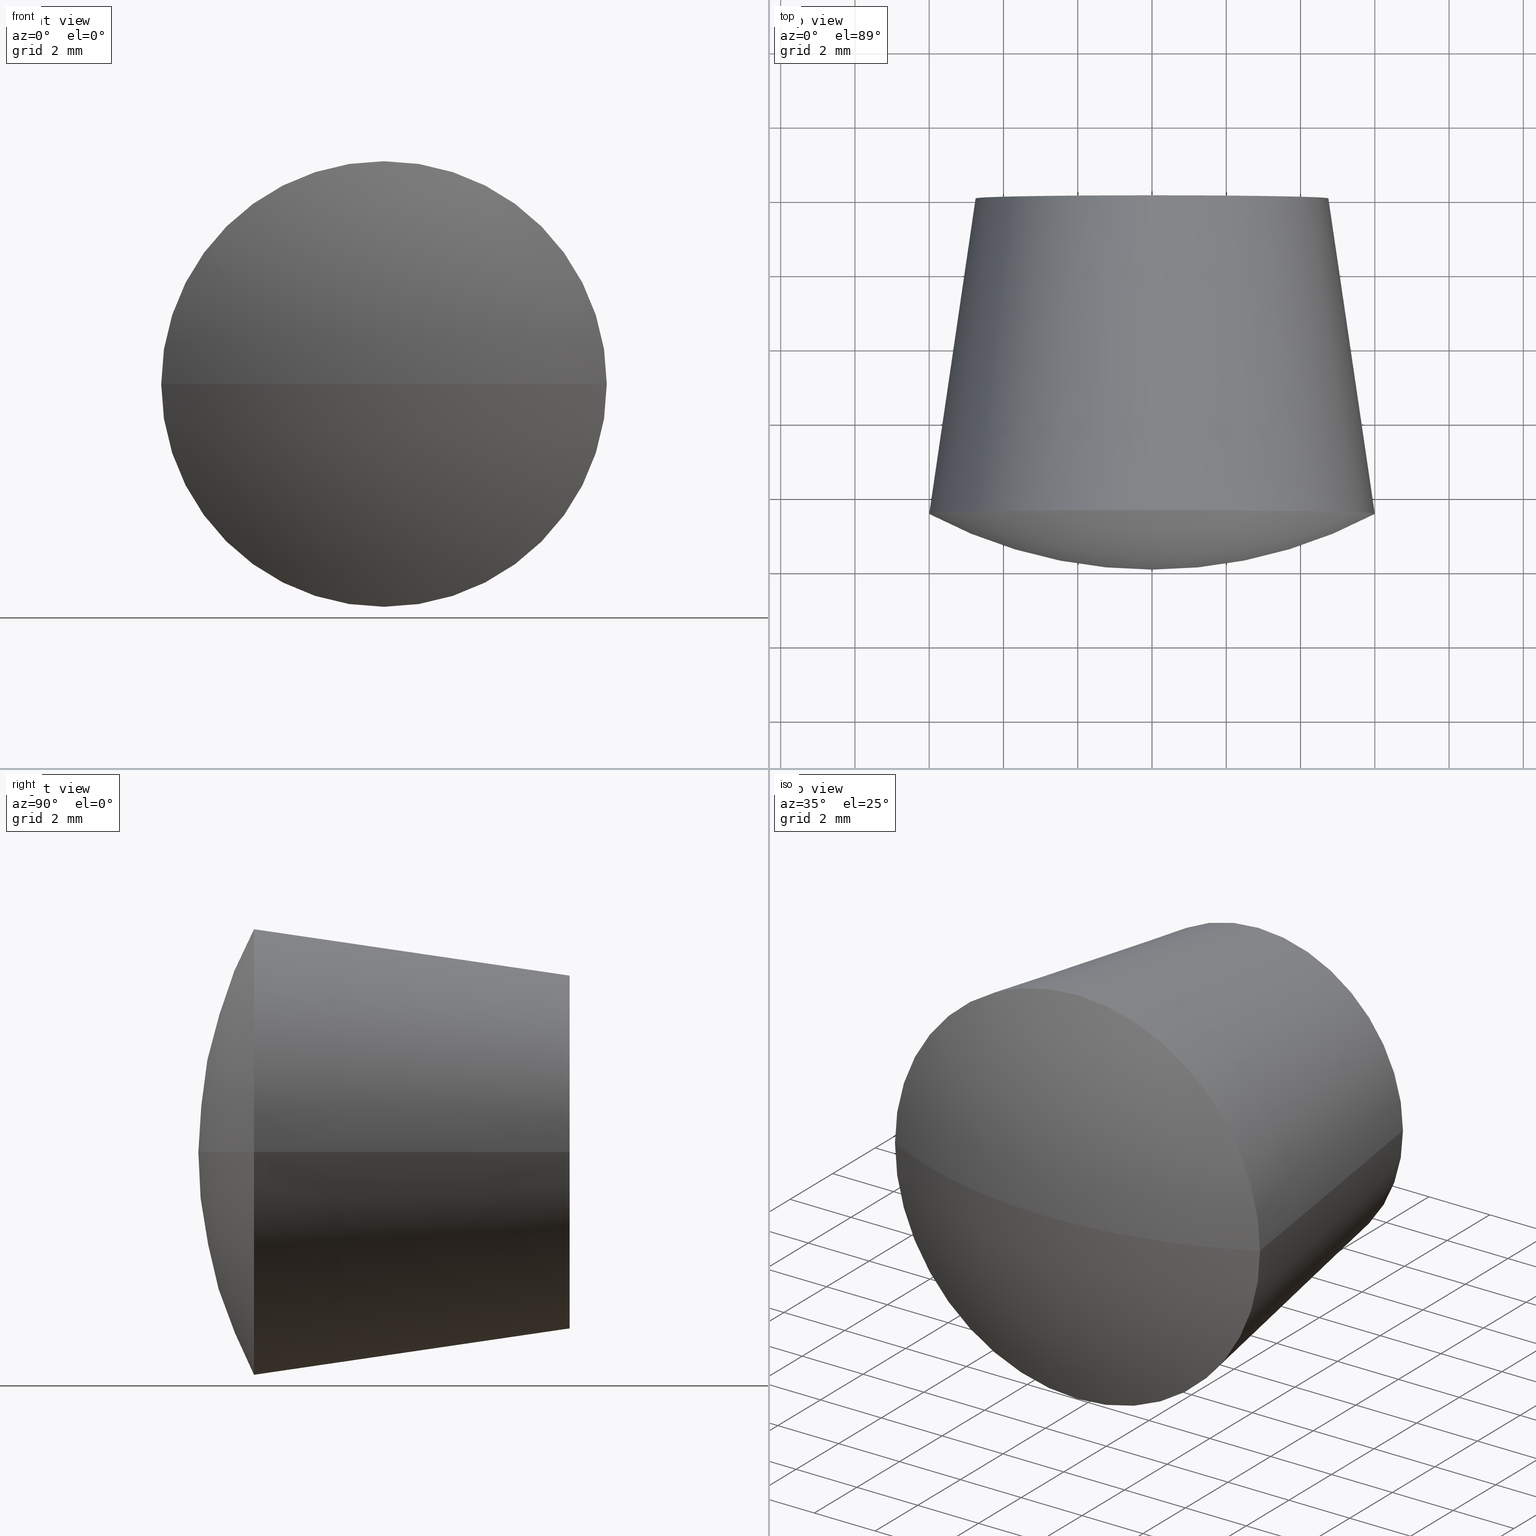
[diagram: canonical four-view strip — front | top / right | iso, engineering-drawing reading convention]
A machine part, canonical four-view strip (front | top / right | iso — engineering-drawing reading convention). The complete STEP part file that produces these views, byte-faithful:
ISO-10303-21;
HEADER;
FILE_DESCRIPTION (( 'STEP AP214' ),
    '1' );
FILE_NAME ('NP-05.STEP',
    '2018-01-31T01:18:40',
    ( 'D2' ),
    ( '' ),
    'SwSTEP 2.0',
    'SolidWorks 2016',
    '' );
FILE_SCHEMA (( 'AUTOMOTIVE_DESIGN' ));
ENDSEC;

DATA;
#1 = CIRCLE ( 'NONE', #196, 2.500000000000000400 ) ;
#2 = PRODUCT_DEFINITION_FORMATION_WITH_SPECIFIED_SOURCE ( 'ANY', '', #95, .NOT_KNOWN. ) ;
#3 = ADVANCED_FACE ( 'NONE', ( #27 ), #195, .T. ) ;
#4 = CARTESIAN_POINT ( 'NONE',  ( 0.0000000000000000000, -0.5000000000000064400, 0.0000000000000000000 ) ) ;
#5 = UNCERTAINTY_MEASURE_WITH_UNIT (LENGTH_MEASURE( 1.000000000000000100E-005 ), #127, 'distance_accuracy_value', 'NONE');
#6 = DIRECTION ( 'NONE',  ( 0.0000000000000000000, 0.0000000000000000000, 1.000000000000000000 ) ) ;
#7 = ORIENTED_EDGE ( 'NONE', *, *, #313, .F. ) ;
#8 = DIRECTION ( 'NONE',  ( 0.0000000000000000000, 0.0000000000000000000, -1.000000000000000000 ) ) ;
#9 = FACE_BOUND ( 'NONE', #122, .T. ) ;
#10 = DIRECTION ( 'NONE',  ( 3.491481338843133400E-015, -1.000000000000000000, -0.0000000000000000000 ) ) ;
#11 = AXIS2_PLACEMENT_3D ( 'NONE', #207, #10, #64 ) ;
#12 = CARTESIAN_POINT ( 'NONE',  ( 2.895229960628836200E-029, -8.292268179752438600E-015, 0.0000000000000000000 ) ) ;
#13 = DIRECTION ( 'NONE',  ( -1.000000000000000000, -3.469446951953613400E-015, 0.0000000000000000000 ) ) ;
#14 = VERTEX_POINT ( 'NONE', #219 ) ;
#15 = PRODUCT_DEFINITION_SHAPE ( 'NONE', 'NONE',  #215 ) ;
#16 = CARTESIAN_POINT ( 'NONE',  ( 3.367778697655221500E-016, -0.5000000000000064400, -2.500000000000000400 ) ) ;
#17 = EDGE_CURVE ( 'NONE', #14, #69, #279, .T. ) ;
#18 = CARTESIAN_POINT ( 'NONE',  ( 0.0000000000000000000, -0.5000000000000064400, 0.0000000000000000000 ) ) ;
#19 = CIRCLE ( 'NONE', #307, 2.500000000000000400 ) ;
#20 = DIRECTION ( 'NONE',  ( 1.000000000000000000, 3.469446951953631100E-015, 0.0000000000000000000 ) ) ;
#21 = DIRECTION ( 'NONE',  ( -0.0000000000000000000, -1.000000000000000000, -0.0000000000000000000 ) ) ;
#22 = DIRECTION ( 'NONE',  ( -3.491481338843133400E-015, 1.000000000000000000, 0.0000000000000000000 ) ) ;
#23 = VERTEX_POINT ( 'NONE', #74 ) ;
#24 = ORIENTED_EDGE ( 'NONE', *, *, #276, .T. ) ;
#25 = CONICAL_SURFACE ( 'NONE', #102, 2.100000000000000100, 0.7853981633974416200 ) ;
#26 = EDGE_CURVE ( 'NONE', #55, #56, #312, .T. ) ;
#27 = FACE_OUTER_BOUND ( 'NONE', #75, .T. ) ;
#28 = AXIS2_PLACEMENT_3D ( 'NONE', #180, #280, #37 ) ;
#29 = ORIENTED_EDGE ( 'NONE', *, *, #146, .F. ) ;
#30 = VECTOR ( 'NONE', #116, 1000.000000000000000 ) ;
#31 = ADVANCED_BREP_SHAPE_REPRESENTATION ( 'NP-05', ( #296, #225 ), #138 ) ;
#32 = EDGE_CURVE ( 'NONE', #56, #14, #40, .T. ) ;
#33 = ORIENTED_EDGE ( 'NONE', *, *, #94, .T. ) ;
#34 = DIRECTION ( 'NONE',  ( 0.0000000000000000000, 0.0000000000000000000, 1.000000000000000000 ) ) ;
#35 = LINE ( 'NONE', #308, #248 ) ;
#36 = CARTESIAN_POINT ( 'NONE',  ( 2.967759138016635000E-014, -8.499999999999952000, 0.0000000000000000000 ) ) ;
#37 = DIRECTION ( 'NONE',  ( 1.000000000000000000, 3.469446951953631100E-015, 0.0000000000000000000 ) ) ;
#38 = CARTESIAN_POINT ( 'NONE',  ( 0.0000000000000000000, -0.9000000000000119000, 0.0000000000000000000 ) ) ;
#39 = DIRECTION ( 'NONE',  ( 0.0000000000000000000, 0.0000000000000000000, -1.000000000000000000 ) ) ;
#40 = CIRCLE ( 'NONE', #89, 5.999999999999970700 ) ;
#41 = CARTESIAN_POINT ( 'NONE',  ( 2.967759138016635000E-014, -8.499999999999952000, 0.0000000000000000000 ) ) ;
#42 =( GEOMETRIC_REPRESENTATION_CONTEXT ( 3 ) GLOBAL_UNCERTAINTY_ASSIGNED_CONTEXT ( ( #5 ) ) GLOBAL_UNIT_ASSIGNED_CONTEXT ( ( #127, #293, #149 ) ) REPRESENTATION_CONTEXT ( 'NONE', 'WORKASPACE' ) );
#43 = CARTESIAN_POINT ( 'NONE',  ( 2.500000000000000400, -0.5000000000000064400, 3.061616997868382600E-016 ) ) ;
#44 = ORIENTED_EDGE ( 'NONE', *, *, #209, .T. ) ;
#45 = DIRECTION ( 'NONE',  ( 0.0000000000000000000, 0.7071067811865522400, 0.7071067811865428000 ) ) ;
#46 = EDGE_CURVE ( 'NONE', #210, #274, #176, .T. ) ;
#47 = ORIENTED_EDGE ( 'NONE', *, *, #246, .T. ) ;
#48 =( LENGTH_UNIT ( ) NAMED_UNIT ( * ) SI_UNIT ( .MILLI., .METRE. ) );
#49 = DIRECTION ( 'NONE',  ( -1.000000000000000000, -3.503461137757080400E-015, 0.0000000000000000000 ) ) ;
#50 = CIRCLE ( 'NONE', #66, 4.749999999999999100 ) ;
#51 = DIRECTION ( 'NONE',  ( 3.491481338843133400E-015, -1.000000000000000000, -0.0000000000000000000 ) ) ;
#52 = AXIS2_PLACEMENT_3D ( 'NONE', #38, #237, #6 ) ;
#53 = FILL_AREA_STYLE_COLOUR ( '', #316 ) ;
#54 = AXIS2_PLACEMENT_3D ( 'NONE', #41, #126, #20 ) ;
#55 = VERTEX_POINT ( 'NONE', #173 ) ;
#56 = VERTEX_POINT ( 'NONE', #143 ) ;
#57 = FACE_OUTER_BOUND ( 'NONE', #159, .T. ) ;
#58 = ORIENTED_EDGE ( 'NONE', *, *, #202, .F. ) ;
#59 = CARTESIAN_POINT ( 'NONE',  ( 2.500000000000049300, -14.07106781186546000, 3.061616997868383600E-016 ) ) ;
#60 = ADVANCED_FACE ( 'NONE', ( #164 ), #160, .T. ) ;
#61 = DIRECTION ( 'NONE',  ( 1.000000000000000000, 0.0000000000000000000, 0.0000000000000000000 ) ) ;
#62 = ORIENTED_EDGE ( 'NONE', *, *, #32, .F. ) ;
#63 = CARTESIAN_POINT ( 'NONE',  ( 4.373567473579352000E-014, -10.00000000000000000, 0.0000000000000000000 ) ) ;
#64 = DIRECTION ( 'NONE',  ( 1.000000000000000000, 3.491481338843132600E-015, 0.0000000000000000000 ) ) ;
#65 = CYLINDRICAL_SURFACE ( 'NONE', #238, 2.500000000000000400 ) ;
#66 = AXIS2_PLACEMENT_3D ( 'NONE', #121, #259, #181 ) ;
#67 = DIRECTION ( 'NONE',  ( -1.000000000000000000, -3.491481338843133400E-015, 0.0000000000000000000 ) ) ;
#68 = DIRECTION ( 'NONE',  ( 0.1454939904948323600, -0.9893591353648530900, 0.0000000000000000000 ) ) ;
#69 = VERTEX_POINT ( 'NONE', #63 ) ;
#70 = CARTESIAN_POINT ( 'NONE',  ( 4.912887068272456400E-014, -14.07106781186546800, 0.0000000000000000000 ) ) ;
#71 = FACE_OUTER_BOUND ( 'NONE', #300, .T. ) ;
#72 =( NAMED_UNIT ( * ) SI_UNIT ( $, .STERADIAN. ) SOLID_ANGLE_UNIT ( ) );
#73 = AXIS2_PLACEMENT_3D ( 'NONE', #183, #286, #13 ) ;
#74 = CARTESIAN_POINT ( 'NONE',  ( 2.500000000000024900, -6.999999999999991100, 3.061616997868396900E-016 ) ) ;
#75 = EDGE_LOOP ( 'NONE', ( #185, #24, #292 ) ) ;
#76 = VECTOR ( 'NONE', #45, 1000.000000000000000 ) ;
#77 = CIRCLE ( 'NONE', #118, 3.000000000000000000 ) ;
#78 = DIRECTION ( 'NONE',  ( 0.0000000000000000000, 0.0000000000000000000, 1.000000000000000000 ) ) ;
#79 = ORIENTED_EDGE ( 'NONE', *, *, #275, .F. ) ;
#80 = APPLICATION_CONTEXT ( 'automotive_design' ) ;
#81 = ORIENTED_EDGE ( 'NONE', *, *, #209, .F. ) ;
#82 = VECTOR ( 'NONE', #68, 1000.000000000000100 ) ;
#83 = CYLINDRICAL_SURFACE ( 'NONE', #125, 2.500000000000000400 ) ;
#84 =( NAMED_UNIT ( * ) SI_UNIT ( $, .STERADIAN. ) SOLID_ANGLE_UNIT ( ) );
#85 = ORIENTED_EDGE ( 'NONE', *, *, #260, .F. ) ;
#86 = ADVANCED_FACE ( 'NONE', ( #107 ), #25, .F. ) ;
#87 = DIRECTION ( 'NONE',  ( 0.0000000000000000000, 0.0000000000000000000, 1.000000000000000000 ) ) ;
#88 = ORIENTED_EDGE ( 'NONE', *, *, #246, .F. ) ;
#89 = AXIS2_PLACEMENT_3D ( 'NONE', #36, #251, #115 ) ;
#90 = CIRCLE ( 'NONE', #170, 2.500000000000000400 ) ;
#91 = CARTESIAN_POINT ( 'NONE',  ( 4.749999999999999100, 1.658453635950487700E-014, 0.0000000000000000000 ) ) ;
#92 = ORIENTED_EDGE ( 'NONE', *, *, #294, .F. ) ;
#93 = CIRCLE ( 'NONE', #298, 12.75000000000000200 ) ;
#94 = EDGE_CURVE ( 'NONE', #120, #210, #168, .T. ) ;
#95 = PRODUCT ( 'NP-05', 'NP-05', '', ( #220 ) ) ;
#96 = DIRECTION ( 'NONE',  ( -1.000000000000000000, -3.469446951953613400E-015, 0.0000000000000000000 ) ) ;
#97 = ORIENTED_EDGE ( 'NONE', *, *, #275, .T. ) ;
#98 = VERTEX_POINT ( 'NONE', #285 ) ;
#99 = FACE_OUTER_BOUND ( 'NONE', #236, .T. ) ;
#100 = DIRECTION ( 'NONE',  ( -1.224646799147353200E-016, -4.275831445896958600E-031, -1.000000000000000000 ) ) ;
#101 = SURFACE_SIDE_STYLE ('',( #201 ) ) ;
#102 = AXIS2_PLACEMENT_3D ( 'NONE', #233, #234, #254 ) ;
#103 = FACE_OUTER_BOUND ( 'NONE', #310, .T. ) ;
#104 = EDGE_CURVE ( 'NONE', #56, #69, #93, .T. ) ;
#105 = DIRECTION ( 'NONE',  ( 1.000000000000000000, 0.0000000000000000000, 0.0000000000000000000 ) ) ;
#106 = ORIENTED_EDGE ( 'NONE', *, *, #228, .F. ) ;
#107 = FACE_OUTER_BOUND ( 'NONE', #111, .T. ) ;
#108 = AXIS2_PLACEMENT_3D ( 'NONE', #309, #289, #49 ) ;
#109 = ORIENTED_EDGE ( 'NONE', *, *, #267, .T. ) ;
#110 = STYLED_ITEM ( 'NONE', ( #145 ), #296 ) ;
#111 = EDGE_LOOP ( 'NONE', ( #190, #211, #33, #58, #258 ) ) ;
#112 = DIRECTION ( 'NONE',  ( 0.0000000000000000000, 0.0000000000000000000, 1.000000000000000000 ) ) ;
#113 = ADVANCED_FACE ( 'NONE', ( #224 ), #83, .F. ) ;
#114 = DIRECTION ( 'NONE',  ( -0.0000000000000000000, 0.0000000000000000000, -1.000000000000000000 ) ) ;
#115 = DIRECTION ( 'NONE',  ( 1.000000000000000000, 3.469446951953631100E-015, 0.0000000000000000000 ) ) ;
#116 = DIRECTION ( 'NONE',  ( 8.659560562354874900E-017, 0.7071067811865522400, -0.7071067811865428000 ) ) ;
#117 = ORIENTED_EDGE ( 'NONE', *, *, #202, .T. ) ;
#118 = AXIS2_PLACEMENT_3D ( 'NONE', #167, #182, #39 ) ;
#119 = CARTESIAN_POINT ( 'NONE',  ( 6.000000000000000000, -8.499999999999930700, 0.0000000000000000000 ) ) ;
#120 = VERTEX_POINT ( 'NONE', #16 ) ;
#121 = CARTESIAN_POINT ( 'NONE',  ( 0.0000000000000000000, 0.0000000000000000000, 0.0000000000000000000 ) ) ;
#122 = EDGE_LOOP ( 'NONE', ( #117, #269 ) ) ;
#123 = CARTESIAN_POINT ( 'NONE',  ( 0.0000000000000000000, -0.9000000000000119000, 2.100000000000000100 ) ) ;
#124 = CARTESIAN_POINT ( 'NONE',  ( -5.999999999999941400, -8.499999999999973400, 7.347880794884083300E-016 ) ) ;
#125 = AXIS2_PLACEMENT_3D ( 'NONE', #169, #239, #140 ) ;
#126 = DIRECTION ( 'NONE',  ( 3.491481338843133400E-015, -1.000000000000000000, -0.0000000000000000000 ) ) ;
#127 =( LENGTH_UNIT ( ) NAMED_UNIT ( * ) SI_UNIT ( .MILLI., .METRE. ) );
#128 = VERTEX_POINT ( 'NONE', #43 ) ;
#129 = VECTOR ( 'NONE', #188, 1000.000000000000000 ) ;
#130 = UNCERTAINTY_MEASURE_WITH_UNIT (LENGTH_MEASURE( 1.000000000000000100E-005 ), #48, 'distance_accuracy_value', 'NONE');
#131 = PRESENTATION_STYLE_ASSIGNMENT (( #153 ) ) ;
#132 = AXIS2_PLACEMENT_3D ( 'NONE', #264, #100, #291 ) ;
#133 = EDGE_CURVE ( 'NONE', #213, #55, #50, .T. ) ;
#134 = ORIENTED_EDGE ( 'NONE', *, *, #276, .F. ) ;
#135 = VECTOR ( 'NONE', #278, 1000.000000000000000 ) ;
#136 = ADVANCED_FACE ( 'NONE', ( #103 ), #65, .F. ) ;
#137 = ORIENTED_EDGE ( 'NONE', *, *, #26, .T. ) ;
#138 =( GEOMETRIC_REPRESENTATION_CONTEXT ( 3 ) GLOBAL_UNCERTAINTY_ASSIGNED_CONTEXT ( ( #177 ) ) GLOBAL_UNIT_ASSIGNED_CONTEXT ( ( #172, #240, #72 ) ) REPRESENTATION_CONTEXT ( 'NONE', 'WORKASPACE' ) );
#139 = SPHERICAL_SURFACE ( 'NONE', #244, 12.75000000000000200 ) ;
#140 = DIRECTION ( 'NONE',  ( -1.000000000000000000, -3.469446951953613400E-015, 0.0000000000000000000 ) ) ;
#141 = PLANE ( 'NONE',  #154 ) ;
#142 = EDGE_LOOP ( 'NONE', ( #218, #29 ) ) ;
#143 = CARTESIAN_POINT ( 'NONE',  ( -5.999999999999941400, -8.499999999999973400, 7.347880794884083300E-016 ) ) ;
#144 = MECHANICAL_DESIGN_GEOMETRIC_PRESENTATION_REPRESENTATION (  '', ( #110 ), #42 ) ;
#145 = PRESENTATION_STYLE_ASSIGNMENT (( #266 ) ) ;
#146 = EDGE_CURVE ( 'NONE', #55, #213, #232, .T. ) ;
#147 = CONICAL_SURFACE ( 'NONE', #52, 2.100000000000000100, 0.7853981633974416200 ) ;
#148 = DIRECTION ( 'NONE',  ( -1.000000000000000000, -3.503461137757080400E-015, 0.0000000000000000000 ) ) ;
#149 =( NAMED_UNIT ( * ) SI_UNIT ( $, .STERADIAN. ) SOLID_ANGLE_UNIT ( ) );
#150 = VERTEX_POINT ( 'NONE', #214 ) ;
#151 = ORIENTED_EDGE ( 'NONE', *, *, #267, .F. ) ;
#152 = SHAPE_DEFINITION_REPRESENTATION ( #15, #31 ) ;
#153 = SURFACE_STYLE_USAGE ( .BOTH. , #271 ) ;
#154 = AXIS2_PLACEMENT_3D ( 'NONE', #12, #208, #67 ) ;
#155 = CIRCLE ( 'NONE', #229, 2.500000000000000400 ) ;
#156 = ORIENTED_EDGE ( 'NONE', *, *, #17, .T. ) ;
#157 = LINE ( 'NONE', #119, #82 ) ;
#158 = AXIS2_PLACEMENT_3D ( 'NONE', #257, #187, #306 ) ;
#159 = EDGE_LOOP ( 'NONE', ( #252, #156, #253 ) ) ;
#160 = CONICAL_SURFACE ( 'NONE', #28, 5.999999999999970700, 0.1460122577112729400 ) ;
#161 = PRESENTATION_LAYER_ASSIGNMENT (  '', '', ( #110 ) ) ;
#162 = DIRECTION ( 'NONE',  ( -0.0000000000000000000, -1.000000000000000000, -0.0000000000000000000 ) ) ;
#163 = ORIENTED_EDGE ( 'NONE', *, *, #313, .T. ) ;
#164 = FACE_OUTER_BOUND ( 'NONE', #287, .T. ) ;
#165 = CARTESIAN_POINT ( 'NONE',  ( 0.0000000000000000000, 0.0000000000000000000, 0.0000000000000000000 ) ) ;
#166 = CARTESIAN_POINT ( 'NONE',  ( -2.500000000000000000, -0.5000000000000064400, 0.0000000000000000000 ) ) ;
#167 = CARTESIAN_POINT ( 'NONE',  ( 0.0000000000000000000, 0.0000000000000000000, 0.0000000000000000000 ) ) ;
#168 = LINE ( 'NONE', #281, #30 ) ;
#169 = CARTESIAN_POINT ( 'NONE',  ( 4.912887068272456400E-014, -14.07106781186546800, 0.0000000000000000000 ) ) ;
#170 = AXIS2_PLACEMENT_3D ( 'NONE', #18, #288, #87 ) ;
#171 = ORIENTED_EDGE ( 'NONE', *, *, #94, .F. ) ;
#172 =( LENGTH_UNIT ( ) NAMED_UNIT ( * ) SI_UNIT ( .MILLI., .METRE. ) );
#173 = CARTESIAN_POINT ( 'NONE',  ( -4.749999999999999100, -1.658453635950487700E-014, 6.582476545417005300E-016 ) ) ;
#174 = APPLICATION_PROTOCOL_DEFINITION ( 'draft international standard', 'automotive_design', 1998, #241 ) ;
#175 = CARTESIAN_POINT ( 'NONE',  ( 0.0000000000000000000, -0.5000000000000064400, 0.0000000000000000000 ) ) ;
#176 = CIRCLE ( 'NONE', #311, 3.000000000000000000 ) ;
#177 = UNCERTAINTY_MEASURE_WITH_UNIT (LENGTH_MEASURE( 1.000000000000000100E-005 ), #172, 'distance_accuracy_value', 'NONE');
#178 = CARTESIAN_POINT ( 'NONE',  ( 0.0000000000000000000, 2.750000000000002700, 0.0000000000000000000 ) ) ;
#179 = ADVANCED_FACE ( 'NONE', ( #99 ), #147, .F. ) ;
#180 = CARTESIAN_POINT ( 'NONE',  ( 2.967759138016635000E-014, -8.499999999999952000, 0.0000000000000000000 ) ) ;
#181 = DIRECTION ( 'NONE',  ( 1.000000000000000000, 3.491481338843132600E-015, 0.0000000000000000000 ) ) ;
#182 = DIRECTION ( 'NONE',  ( -0.0000000000000000000, -1.000000000000000000, -0.0000000000000000000 ) ) ;
#183 = CARTESIAN_POINT ( 'NONE',  ( 2.444036937190193300E-014, -7.000000000000000000, 0.0000000000000000000 ) ) ;
#184 = DIRECTION ( 'NONE',  ( -3.491481338843133400E-015, 1.000000000000000000, -0.0000000000000000000 ) ) ;
#185 = ORIENTED_EDGE ( 'NONE', *, *, #17, .F. ) ;
#186 =( GEOMETRIC_REPRESENTATION_CONTEXT ( 3 ) GLOBAL_UNCERTAINTY_ASSIGNED_CONTEXT ( ( #130 ) ) GLOBAL_UNIT_ASSIGNED_CONTEXT ( ( #48, #297, #84 ) ) REPRESENTATION_CONTEXT ( 'NONE', 'WORKASPACE' ) );
#187 = DIRECTION ( 'NONE',  ( 3.491481338843133400E-015, -1.000000000000000000, -0.0000000000000000000 ) ) ;
#188 = DIRECTION ( 'NONE',  ( -0.1454939904948254800, -0.9893591353648540900, 1.781787497546676800E-017 ) ) ;
#189 = FILL_AREA_STYLE_COLOUR ( '', #261 ) ;
#190 = ORIENTED_EDGE ( 'NONE', *, *, #260, .T. ) ;
#191 = PLANE ( 'NONE',  #193 ) ;
#192 = DIRECTION ( 'NONE',  ( -1.000000000000000000, -3.491481338843133400E-015, 0.0000000000000000000 ) ) ;
#193 = AXIS2_PLACEMENT_3D ( 'NONE', #250, #22, #192 ) ;
#194 = PRODUCT_DEFINITION_CONTEXT ( 'detailed design', #241, 'design' ) ;
#195 = SPHERICAL_SURFACE ( 'NONE', #108, 12.75000000000000200 ) ;
#196 = AXIS2_PLACEMENT_3D ( 'NONE', #175, #21, #78 ) ;
#197 = ORIENTED_EDGE ( 'NONE', *, *, #228, .T. ) ;
#198 = VERTEX_POINT ( 'NONE', #166 ) ;
#199 = FACE_OUTER_BOUND ( 'NONE', #142, .T. ) ;
#200 = PRODUCT_RELATED_PRODUCT_CATEGORY ( 'part', '', ( #95 ) ) ;
#201 = SURFACE_STYLE_FILL_AREA ( #242 ) ;
#202 = EDGE_CURVE ( 'NONE', #274, #210, #77, .T. ) ;
#203 = ADVANCED_FACE ( 'NONE', ( #9, #199 ), #141, .T. ) ;
#204 = CARTESIAN_POINT ( 'NONE',  ( 0.0000000000000000000, -0.5000000000000064400, 0.0000000000000000000 ) ) ;
#205 = CLOSED_SHELL ( 'NONE', ( #113, #86, #277, #230, #203, #60, #3, #179, #136, #303 ) ) ;
#206 = CIRCLE ( 'NONE', #299, 2.500000000000000400 ) ;
#207 = CARTESIAN_POINT ( 'NONE',  ( 0.0000000000000000000, 0.0000000000000000000, 0.0000000000000000000 ) ) ;
#208 = DIRECTION ( 'NONE',  ( -3.491481338843133400E-015, 1.000000000000000000, 0.0000000000000000000 ) ) ;
#209 = EDGE_CURVE ( 'NONE', #23, #150, #284, .T. ) ;
#210 = VERTEX_POINT ( 'NONE', #256 ) ;
#211 = ORIENTED_EDGE ( 'NONE', *, *, #294, .T. ) ;
#212 = CARTESIAN_POINT ( 'NONE',  ( 0.0000000000000000000, 2.750000000000002700, 0.0000000000000000000 ) ) ;
#213 = VERTEX_POINT ( 'NONE', #91 ) ;
#214 = CARTESIAN_POINT ( 'NONE',  ( -2.499999999999976000, -7.000000000000008900, 0.0000000000000000000 ) ) ;
#215 = PRODUCT_DEFINITION ( 'UNKNOWN', '', #2, #194 ) ;
#216 = ORIENTED_EDGE ( 'NONE', *, *, #146, .T. ) ;
#217 = APPLICATION_PROTOCOL_DEFINITION ( 'draft international standard', 'automotive_design', 1998, #80 ) ;
#218 = ORIENTED_EDGE ( 'NONE', *, *, #133, .F. ) ;
#219 = CARTESIAN_POINT ( 'NONE',  ( 6.000000000000000000, -8.499999999999930700, 0.0000000000000000000 ) ) ;
#220 = PRODUCT_CONTEXT ( 'NONE', #80, 'mechanical' ) ;
#221 = PRESENTATION_LAYER_ASSIGNMENT (  '', '', ( #301 ) ) ;
#222 = EDGE_LOOP ( 'NONE', ( #163, #97, #282, #92, #151 ) ) ;
#223 = CARTESIAN_POINT ( 'NONE',  ( 0.0000000000000000000, 0.0000000000000000000, 0.0000000000000000000 ) ) ;
#224 = FACE_OUTER_BOUND ( 'NONE', #222, .T. ) ;
#225 = AXIS2_PLACEMENT_3D ( 'NONE', #223, #273, #105 ) ;
#226 = ORIENTED_EDGE ( 'NONE', *, *, #26, .F. ) ;
#227 = ORIENTED_EDGE ( 'NONE', *, *, #133, .T. ) ;
#228 = EDGE_CURVE ( 'NONE', #213, #14, #157, .T. ) ;
#229 = AXIS2_PLACEMENT_3D ( 'NONE', #268, #51, #290 ) ;
#230 = ADVANCED_FACE ( 'NONE', ( #272 ), #263, .T. ) ;
#231 = DIRECTION ( 'NONE',  ( -0.0000000000000000000, -1.000000000000000000, -0.0000000000000000000 ) ) ;
#232 = CIRCLE ( 'NONE', #11, 4.749999999999999100 ) ;
#233 = CARTESIAN_POINT ( 'NONE',  ( 0.0000000000000000000, -0.9000000000000119000, 0.0000000000000000000 ) ) ;
#234 = DIRECTION ( 'NONE',  ( 0.0000000000000000000, 1.000000000000000000, 0.0000000000000000000 ) ) ;
#235 = EDGE_CURVE ( 'NONE', #98, #274, #315, .T. ) ;
#236 = EDGE_LOOP ( 'NONE', ( #171, #262, #47, #295, #283 ) ) ;
#237 = DIRECTION ( 'NONE',  ( 0.0000000000000000000, 1.000000000000000000, 0.0000000000000000000 ) ) ;
#238 = AXIS2_PLACEMENT_3D ( 'NONE', #70, #184, #96 ) ;
#239 = DIRECTION ( 'NONE',  ( -3.491481338843133400E-015, 1.000000000000000000, -0.0000000000000000000 ) ) ;
#240 =( NAMED_UNIT ( * ) PLANE_ANGLE_UNIT ( ) SI_UNIT ( $, .RADIAN. ) );
#241 = APPLICATION_CONTEXT ( 'automotive_design' ) ;
#242 = FILL_AREA_STYLE ('',( #189 ) ) ;
#243 = SURFACE_STYLE_FILL_AREA ( #245 ) ;
#244 = AXIS2_PLACEMENT_3D ( 'NONE', #178, #114, #148 ) ;
#245 = FILL_AREA_STYLE ('',( #53 ) ) ;
#246 = EDGE_CURVE ( 'NONE', #128, #98, #90, .T. ) ;
#247 = MECHANICAL_DESIGN_GEOMETRIC_PRESENTATION_REPRESENTATION (  '', ( #301 ), #186 ) ;
#248 = VECTOR ( 'NONE', #302, 1000.000000000000000 ) ;
#249 = CARTESIAN_POINT ( 'NONE',  ( 0.0000000000000000000, 1.084202172485504400E-016, 3.000000000000000000 ) ) ;
#250 = CARTESIAN_POINT ( 'NONE',  ( 2.444036937190193300E-014, -7.000000000000000000, 0.0000000000000000000 ) ) ;
#251 = DIRECTION ( 'NONE',  ( 3.491481338843133400E-015, -1.000000000000000000, -0.0000000000000000000 ) ) ;
#252 = ORIENTED_EDGE ( 'NONE', *, *, #32, .T. ) ;
#253 = ORIENTED_EDGE ( 'NONE', *, *, #104, .F. ) ;
#254 = DIRECTION ( 'NONE',  ( 0.0000000000000000000, 0.0000000000000000000, 1.000000000000000000 ) ) ;
#255 = LINE ( 'NONE', #59, #135 ) ;
#256 = CARTESIAN_POINT ( 'NONE',  ( 3.673940397442059900E-016, 1.084202172485504400E-016, -3.000000000000000000 ) ) ;
#257 = CARTESIAN_POINT ( 'NONE',  ( 2.967759138016635000E-014, -8.499999999999952000, 0.0000000000000000000 ) ) ;
#258 = ORIENTED_EDGE ( 'NONE', *, *, #235, .F. ) ;
#259 = DIRECTION ( 'NONE',  ( 3.491481338843133400E-015, -1.000000000000000000, -0.0000000000000000000 ) ) ;
#260 = EDGE_CURVE ( 'NONE', #98, #198, #206, .T. ) ;
#261 = COLOUR_RGB ( '',0.2980392156862745100, 0.2980392156862745100, 0.2980392156862745100 ) ;
#262 = ORIENTED_EDGE ( 'NONE', *, *, #265, .T. ) ;
#263 = CONICAL_SURFACE ( 'NONE', #158, 5.999999999999970700, 0.1460122577112729400 ) ;
#264 = CARTESIAN_POINT ( 'NONE',  ( 0.0000000000000000000, 2.750000000000002700, 0.0000000000000000000 ) ) ;
#265 = EDGE_CURVE ( 'NONE', #120, #128, #19, .T. ) ;
#266 = SURFACE_STYLE_USAGE ( .BOTH. , #101 ) ;
#267 = EDGE_CURVE ( 'NONE', #150, #198, #35, .T. ) ;
#268 = CARTESIAN_POINT ( 'NONE',  ( 2.444036937190193300E-014, -7.000000000000000000, 0.0000000000000000000 ) ) ;
#269 = ORIENTED_EDGE ( 'NONE', *, *, #46, .T. ) ;
#270 = EDGE_LOOP ( 'NONE', ( #227, #137, #134, #106 ) ) ;
#271 = SURFACE_SIDE_STYLE ('',( #243 ) ) ;
#272 = FACE_OUTER_BOUND ( 'NONE', #270, .T. ) ;
#273 = DIRECTION ( 'NONE',  ( 0.0000000000000000000, 0.0000000000000000000, 1.000000000000000000 ) ) ;
#274 = VERTEX_POINT ( 'NONE', #249 ) ;
#275 = EDGE_CURVE ( 'NONE', #23, #128, #255, .T. ) ;
#276 = EDGE_CURVE ( 'NONE', #14, #56, #314, .T. ) ;
#277 = ADVANCED_FACE ( 'NONE', ( #57 ), #139, .T. ) ;
#278 = DIRECTION ( 'NONE',  ( -3.491481338843133400E-015, 1.000000000000000000, -0.0000000000000000000 ) ) ;
#279 = CIRCLE ( 'NONE', #132, 12.75000000000000200 ) ;
#280 = DIRECTION ( 'NONE',  ( 3.491481338843133400E-015, -1.000000000000000000, -0.0000000000000000000 ) ) ;
#281 = CARTESIAN_POINT ( 'NONE',  ( 2.571758278209442000E-016, -0.9000000000000119000, -2.100000000000000100 ) ) ;
#282 = ORIENTED_EDGE ( 'NONE', *, *, #265, .F. ) ;
#283 = ORIENTED_EDGE ( 'NONE', *, *, #46, .F. ) ;
#284 = CIRCLE ( 'NONE', #73, 2.500000000000000400 ) ;
#285 = CARTESIAN_POINT ( 'NONE',  ( 0.0000000000000000000, -0.5000000000000064400, 2.500000000000000400 ) ) ;
#286 = DIRECTION ( 'NONE',  ( 3.491481338843133400E-015, -1.000000000000000000, -0.0000000000000000000 ) ) ;
#287 = EDGE_LOOP ( 'NONE', ( #226, #216, #197, #62 ) ) ;
#288 = DIRECTION ( 'NONE',  ( -0.0000000000000000000, -1.000000000000000000, -0.0000000000000000000 ) ) ;
#289 = DIRECTION ( 'NONE',  ( -0.0000000000000000000, 0.0000000000000000000, -1.000000000000000000 ) ) ;
#290 = DIRECTION ( 'NONE',  ( -1.000000000000000000, -3.469446951953613400E-015, 0.0000000000000000000 ) ) ;
#291 = DIRECTION ( 'NONE',  ( -1.000000000000000000, 0.0000000000000000000, 1.224646799147353200E-016 ) ) ;
#292 = ORIENTED_EDGE ( 'NONE', *, *, #104, .T. ) ;
#293 =( NAMED_UNIT ( * ) PLANE_ANGLE_UNIT ( ) SI_UNIT ( $, .RADIAN. ) );
#294 = EDGE_CURVE ( 'NONE', #198, #120, #1, .T. ) ;
#295 = ORIENTED_EDGE ( 'NONE', *, *, #235, .T. ) ;
#296 = MANIFOLD_SOLID_BREP ( '����-����2', #205 ) ;
#297 =( NAMED_UNIT ( * ) PLANE_ANGLE_UNIT ( ) SI_UNIT ( $, .RADIAN. ) );
#298 = AXIS2_PLACEMENT_3D ( 'NONE', #212, #305, #61 ) ;
#299 = AXIS2_PLACEMENT_3D ( 'NONE', #4, #162, #34 ) ;
#300 = EDGE_LOOP ( 'NONE', ( #7, #81 ) ) ;
#301 = STYLED_ITEM ( 'NONE', ( #131 ), #31 ) ;
#302 = DIRECTION ( 'NONE',  ( -3.491481338843133400E-015, 1.000000000000000000, -0.0000000000000000000 ) ) ;
#303 = ADVANCED_FACE ( 'NONE', ( #71 ), #191, .T. ) ;
#304 = DIRECTION ( 'NONE',  ( -0.0000000000000000000, -1.000000000000000000, -0.0000000000000000000 ) ) ;
#305 = DIRECTION ( 'NONE',  ( 0.0000000000000000000, 0.0000000000000000000, 1.000000000000000000 ) ) ;
#306 = DIRECTION ( 'NONE',  ( 1.000000000000000000, 3.469446951953631100E-015, 0.0000000000000000000 ) ) ;
#307 = AXIS2_PLACEMENT_3D ( 'NONE', #204, #231, #112 ) ;
#308 = CARTESIAN_POINT ( 'NONE',  ( -2.499999999999951600, -14.07106781186547700, 0.0000000000000000000 ) ) ;
#309 = CARTESIAN_POINT ( 'NONE',  ( 0.0000000000000000000, 2.750000000000002700, 0.0000000000000000000 ) ) ;
#310 = EDGE_LOOP ( 'NONE', ( #79, #44, #109, #85, #88 ) ) ;
#311 = AXIS2_PLACEMENT_3D ( 'NONE', #165, #304, #8 ) ;
#312 = LINE ( 'NONE', #124, #129 ) ;
#313 = EDGE_CURVE ( 'NONE', #150, #23, #155, .T. ) ;
#314 = CIRCLE ( 'NONE', #54, 5.999999999999970700 ) ;
#315 = LINE ( 'NONE', #123, #76 ) ;
#316 = COLOUR_RGB ( '',0.2980392156862745100, 0.2980392156862745100, 0.2980392156862745100 ) ;
ENDSEC;
END-ISO-10303-21;
